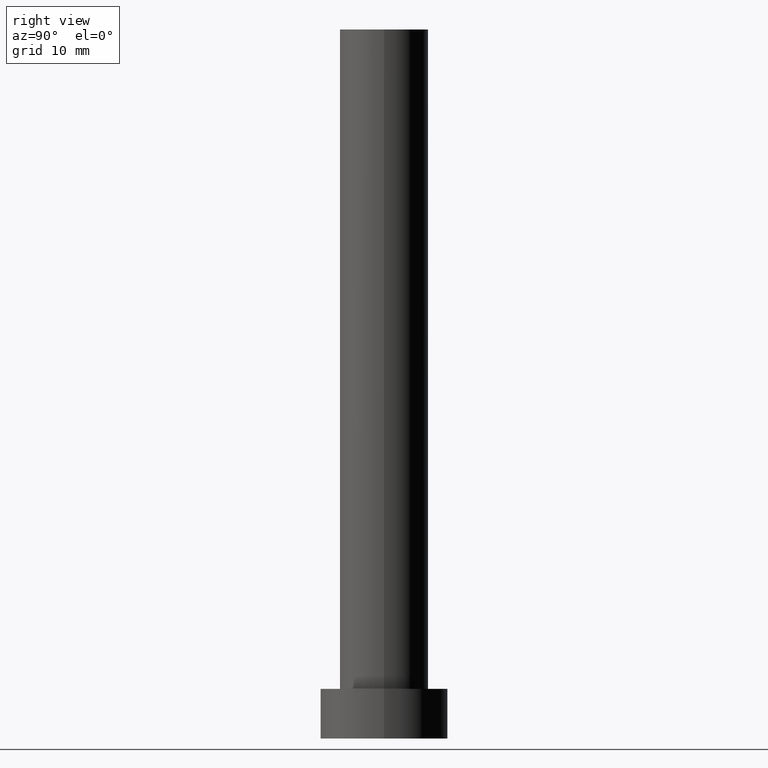
[diagram: clean part render]
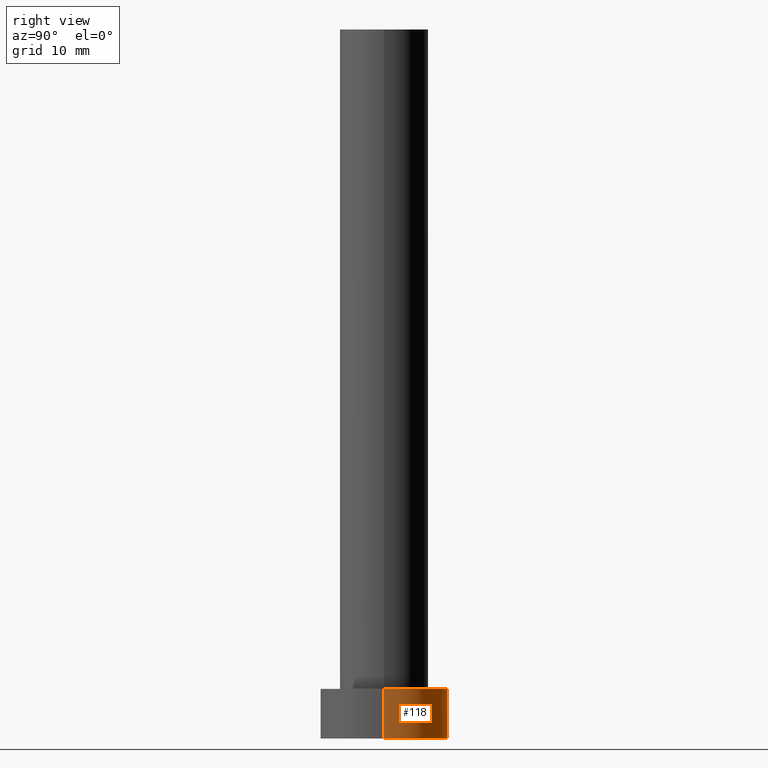
[diagram: same view with one face highlighted and labeled with its STEP entity id]
A machine part, right view. The second image highlights one B-rep face of the part: STEP entity #118.
In plain terms, the highlighted cylindrical surface (partial cylindrical patch) has radius 9 mm, axis along (-0, -0, -1).
Its self-contained STEP definition (entity closure, byte-faithful):
#16 = CARTESIAN_POINT ( 'NONE',  ( -9.000000000000000000, 0.000000000000000000, 0.000000000000000000 ) ) ;
#18 = ORIENTED_EDGE ( 'NONE', *, *, #230, .F. ) ;
#30 = AXIS2_PLACEMENT_3D ( 'NONE', #255, #45, #231 ) ;
#31 = VECTOR ( 'NONE', #49, 1000.000000000000000 ) ;
#38 = CARTESIAN_POINT ( 'NONE',  ( 0.000000000000000000, 0.000000000000000000, 0.000000000000000000 ) ) ;
#45 = DIRECTION ( 'NONE',  ( -0.000000000000000000, -0.000000000000000000, -1.000000000000000000 ) ) ;
#48 = DIRECTION ( 'NONE',  ( 0.000000000000000000, 0.000000000000000000, 1.000000000000000000 ) ) ;
#49 = DIRECTION ( 'NONE',  ( -0.000000000000000000, -0.000000000000000000, -1.000000000000000000 ) ) ;
#76 = VERTEX_POINT ( 'NONE', #139 ) ;
#83 = VECTOR ( 'NONE', #145, 1000.000000000000000 ) ;
#100 = EDGE_LOOP ( 'NONE', ( #127, #174, #228, #18 ) ) ;
#118 = ADVANCED_FACE ( 'NONE', ( #166 ), #181, .T. ) ;
#122 = EDGE_CURVE ( 'NONE', #76, #212, #142, .T. ) ;
#125 = VERTEX_POINT ( 'NONE', #164 ) ;
#126 = EDGE_CURVE ( 'NONE', #178, #125, #246, .T. ) ;
#127 = ORIENTED_EDGE ( 'NONE', *, *, #126, .F. ) ;
#131 = CARTESIAN_POINT ( 'NONE',  ( -9.000000000000000000, 0.000000000000000000, 7.000000000000000000 ) ) ;
#139 = CARTESIAN_POINT ( 'NONE',  ( 9.000000000000000000, 1.102182119232617714E-15, 0.000000000000000000 ) ) ;
#142 = CIRCLE ( 'NONE', #192, 9.000000000000000000 ) ;
#143 = AXIS2_PLACEMENT_3D ( 'NONE', #235, #48, #183 ) ;
#145 = DIRECTION ( 'NONE',  ( -0.000000000000000000, -0.000000000000000000, -1.000000000000000000 ) ) ;
#148 = CARTESIAN_POINT ( 'NONE',  ( 9.000000000000000000, 1.102182119232617714E-15, 7.000000000000000000 ) ) ;
#153 = LINE ( 'NONE', #131, #31 ) ;
#164 = CARTESIAN_POINT ( 'NONE',  ( -9.000000000000000000, 0.000000000000000000, 7.000000000000000000 ) ) ;
#166 = FACE_OUTER_BOUND ( 'NONE', #100, .T. ) ;
#169 = CARTESIAN_POINT ( 'NONE',  ( 9.000000000000000000, 1.102182119232617714E-15, 7.000000000000000000 ) ) ;
#174 = ORIENTED_EDGE ( 'NONE', *, *, #243, .T. ) ;
#178 = VERTEX_POINT ( 'NONE', #148 ) ;
#179 = DIRECTION ( 'NONE',  ( 0.000000000000000000, 0.000000000000000000, 1.000000000000000000 ) ) ;
#181 = CYLINDRICAL_SURFACE ( 'NONE', #30, 9.000000000000000000 ) ;
#183 = DIRECTION ( 'NONE',  ( 1.000000000000000000, 0.000000000000000000, 0.000000000000000000 ) ) ;
#192 = AXIS2_PLACEMENT_3D ( 'NONE', #38, #179, #252 ) ;
#202 = LINE ( 'NONE', #169, #83 ) ;
#212 = VERTEX_POINT ( 'NONE', #16 ) ;
#228 = ORIENTED_EDGE ( 'NONE', *, *, #122, .T. ) ;
#230 = EDGE_CURVE ( 'NONE', #125, #212, #153, .T. ) ;
#231 = DIRECTION ( 'NONE',  ( -1.000000000000000000, 0.000000000000000000, 0.000000000000000000 ) ) ;
#235 = CARTESIAN_POINT ( 'NONE',  ( 0.000000000000000000, 0.000000000000000000, 7.000000000000000000 ) ) ;
#243 = EDGE_CURVE ( 'NONE', #178, #76, #202, .T. ) ;
#246 = CIRCLE ( 'NONE', #143, 9.000000000000000000 ) ;
#252 = DIRECTION ( 'NONE',  ( 1.000000000000000000, 0.000000000000000000, 0.000000000000000000 ) ) ;
#255 = CARTESIAN_POINT ( 'NONE',  ( 0.000000000000000000, 0.000000000000000000, 7.000000000000000000 ) ) ;